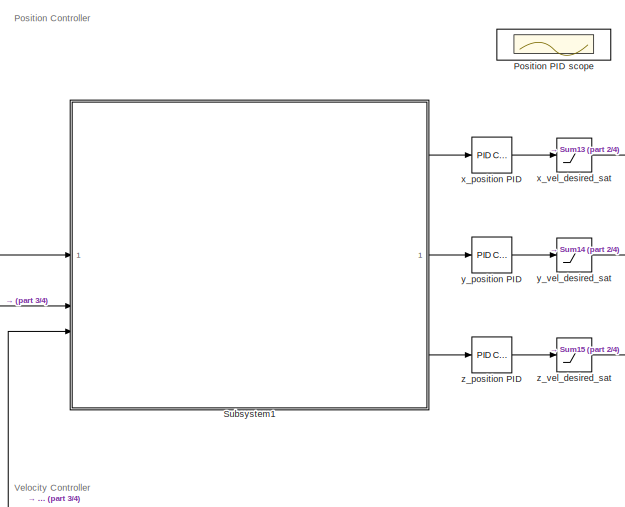
[diagram: root canvas - part 1/4, top center region]
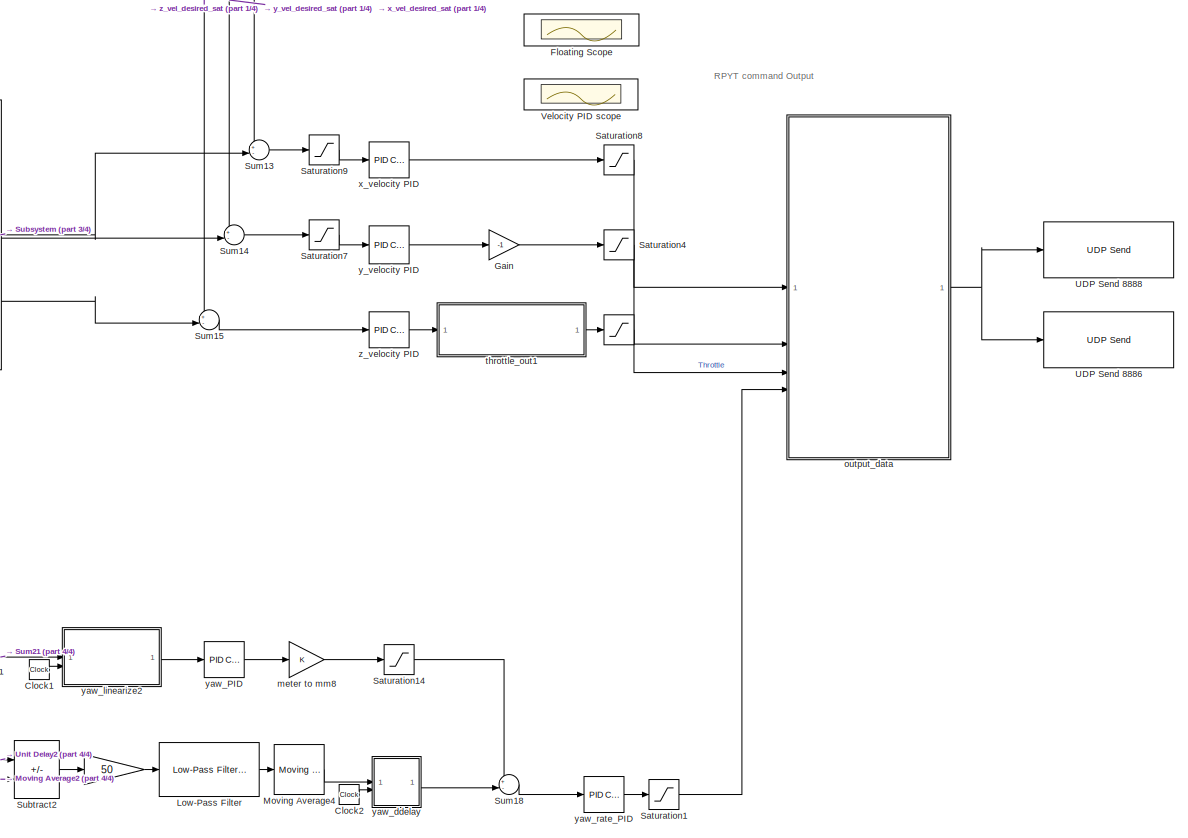
[diagram: root canvas - part 2/4, middle right region]
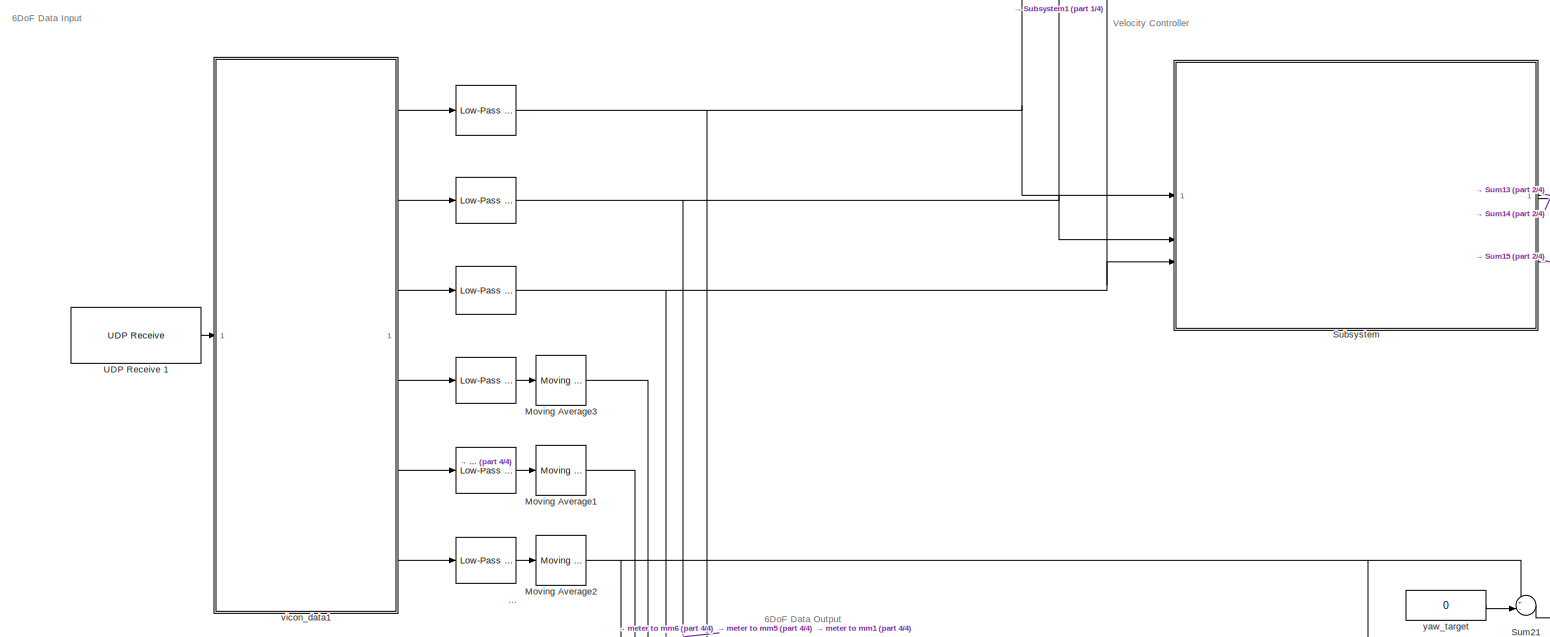
[diagram: root canvas - part 3/4, middle left region]
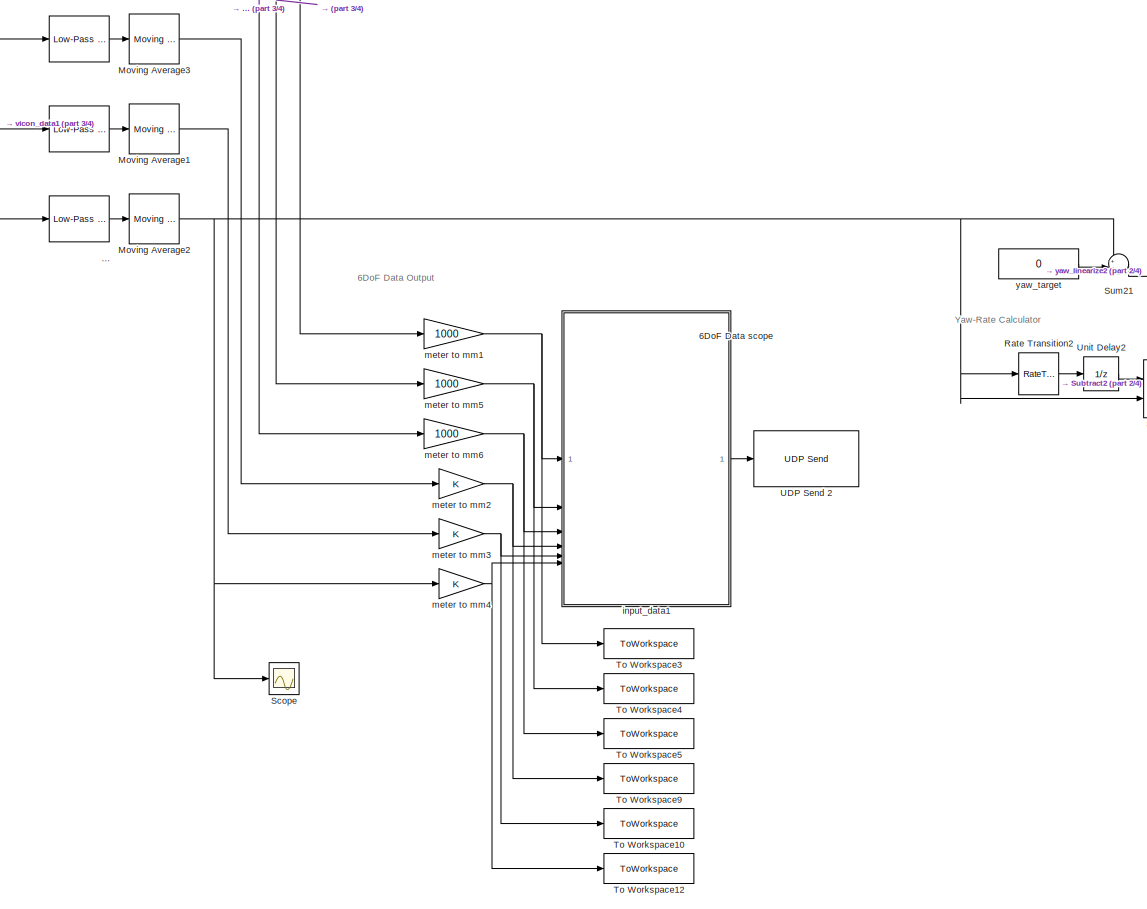
[diagram: root canvas - part 4/4, bottom center region]
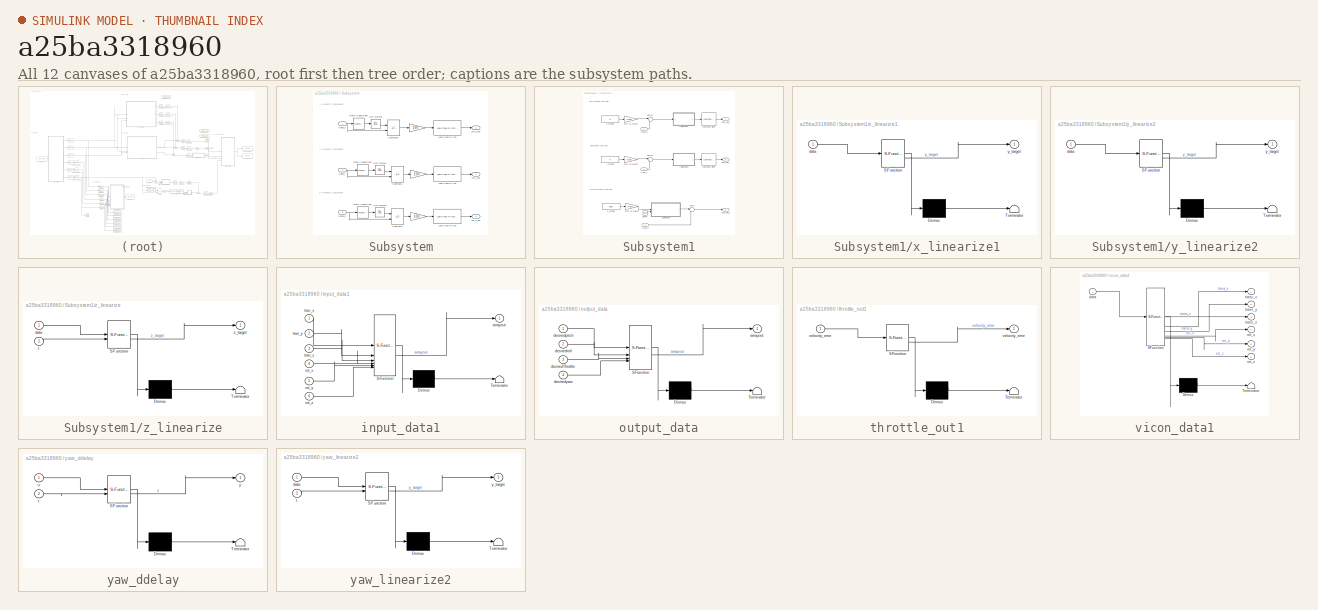
[diagram: thumbnail index - all 12 canvases of the model, root first then tree order]
MODEL slx_a25ba3318960
KIND model
CONFIG AbsTol = auto
CONFIG EnableMultiTasking = off
CONFIG FixedStep = 0.01
CONFIG MaxStep = auto
CONFIG MinStep = auto
CONFIG RelTol = 1e-3
CONFIG SampleTimeConstraint = Unconstrained
CONFIG SolverName = FixedStepDiscrete
CONFIG StartTime = 0.0
CONFIG StopTime = 30
WORKSPACE source: mxarray member
WORKSPACE roll = 1
BLOCK [Saturate]    
  LowerLimit = 0
  UpperLimit = 20000
BLOCK [Reference]       REF=eeGeneralControl/Low-Pass Filter
(Discrete or Continuous)
  LibrarySourceBlock = ee_sl_lib/General Control/Low-Pass Filter\n(Discrete or Continuous)
  SourceBlock = eeGeneralControl/Low-Pass Filter\n(Discrete or Continuous)
  SourceType = Low-Pass Filter (Discrete or Continuous)
BLOCK [Gain]                
  Gain = 50
BLOCK [Reference]                                          REF=eeGeneralControl/Low-Pass Filter
(Discrete or Continuous)
  LibrarySourceBlock = ee_sl_lib/General Control/Low-Pass Filter\n(Discrete or Continuous)
  SourceBlock = eeGeneralControl/Low-Pass Filter\n(Discrete or Continuous)
  SourceType = Low-Pass Filter (Discrete or Continuous)
BLOCK [Reference]                                                       REF=eeGeneralControl/Low-Pass Filter
(Discrete or Continuous)
  LibrarySourceBlock = ee_sl_lib/General Control/Low-Pass Filter\n(Discrete or Continuous)
  SourceBlock = eeGeneralControl/Low-Pass Filter\n(Discrete or Continuous)
  SourceType = Low-Pass Filter (Discrete or Continuous)
BLOCK [Reference]                                                         REF=eeGeneralControl/Low-Pass Filter
(Discrete or Continuous)
  LibrarySourceBlock = ee_sl_lib/General Control/Low-Pass Filter\n(Discrete or Continuous)
  SourceBlock = eeGeneralControl/Low-Pass Filter\n(Discrete or Continuous)
  SourceType = Low-Pass Filter (Discrete or Continuous)
BLOCK [Reference]                                                              REF=eeGeneralControl/Low-Pass Filter
(Discrete or Continuous)
  LibrarySourceBlock = ee_sl_lib/General Control/Low-Pass Filter\n(Discrete or Continuous)
  SourceBlock = eeGeneralControl/Low-Pass Filter\n(Discrete or Continuous)
  SourceType = Low-Pass Filter (Discrete or Continuous)
BLOCK [Reference]                                                                                              REF=eeGeneralControl/Low-Pass Filter
(Discrete or Continuous)
  LibrarySourceBlock = ee_sl_lib/General Control/Low-Pass Filter\n(Discrete or Continuous)
  SourceBlock = eeGeneralControl/Low-Pass Filter\n(Discrete or Continuous)
  SourceType = Low-Pass Filter (Discrete or Continuous)
BLOCK [Reference]     Low-Pass Filter  REF=eeGeneralControl/Low-Pass Filter
(Discrete or Continuous)
  LibrarySourceBlock = ee_sl_lib/General Control/Low-Pass Filter\n(Discrete or Continuous)
  SourceBlock = eeGeneralControl/Low-Pass Filter\n(Discrete or Continuous)
  SourceType = Low-Pass Filter (Discrete or Continuous)
BLOCK [Scope] 6DoF Data scope
  Floating = on
  NumInputPorts = 1
  ScopeSpecificationString = Simulink.scopes.TimeScopeBlockCfg('CurrentConfiguration', extmgr.ConfigurationSet(extmgr.Configuration('Core','General UI',true,'DisplayFullSourceName',false,'ShowMainToolbar',true),extmgr.Configuration('Sources','WiredSimulink',true,'DataLogging',false,'DataLoggingVariableName','ScopeData3','DataLoggingLimitDataPoints',false,'DataLoggingMaxPoints','5000','DataLoggingDecimateData',false,'DataLoggi...<+5822ch>
BLOCK [Clock] Clock1
BLOCK [Clock] Clock2
BLOCK [Scope] Floating Scope
  Floating = on
  NumInputPorts = 1
  ScopeSpecificationString = Simulink.scopes.TimeScopeBlockCfg('CurrentConfiguration', extmgr.ConfigurationSet(extmgr.Configuration('Core','General UI',true),extmgr.Configuration('Core','Source UI',true),extmgr.Configuration('Sources','WiredSimulink',true,'DataLoggingVariableName','ScopeData1'),extmgr.Configuration('Visuals','Time Domain',true,'SerializedDisplays',{struct('MinYLimReal','-1.94103','MaxYLimReal','3.35429','YLab...<+3078ch>
BLOCK [Gain] Gain
  Gain = -1
BLOCK [Reference] Moving Average1  REF=dspstat3/Moving
Average
  SourceBlock = dspstat3/Moving\nAverage
  SourceType = dsp.simulink.MovingAverage
BLOCK [Reference] Moving Average2  REF=dspstat3/Moving
Average
  SourceBlock = dspstat3/Moving\nAverage
  SourceType = dsp.simulink.MovingAverage
BLOCK [Reference] Moving Average3  REF=dspstat3/Moving
Average
  SourceBlock = dspstat3/Moving\nAverage
  SourceType = dsp.simulink.MovingAverage
BLOCK [Reference] Moving Average4  REF=dspstat3/Moving
Average
  SourceBlock = dspstat3/Moving\nAverage
  SourceType = dsp.simulink.MovingAverage
BLOCK [Scope] Position PID scope
  Floating = on
  NumInputPorts = 1
  ScopeSpecificationString = Simulink.scopes.TimeScopeBlockCfg('CurrentConfiguration', extmgr.ConfigurationSet(extmgr.Configuration('Core','General UI',true,'DisplayFullSourceName',false,'ShowMainToolbar',true,'FigureColor',[0.129411764705882 0.129411764705882 0.129411764705882]),extmgr.Configuration('Sources','WiredSimulink',true,'DataLogging',false,'DataLoggingVariableName','ScopeData6','DataLoggingLimitDataPoints',false,'D...<+6168ch>
BLOCK [RateTransition] Rate Transition2
  OutPortSampleTime = 0.02
BLOCK [Saturate] Saturation1
  LowerLimit = -10
  UpperLimit = 10
BLOCK [Saturate] Saturation14
  LowerLimit = -25
  UpperLimit = 25
BLOCK [Saturate] Saturation4
  LowerLimit = -5
  UpperLimit = 5
BLOCK [Saturate] Saturation7
  LowerLimit = -0.8
  UpperLimit = 0.8
BLOCK [Saturate] Saturation8
  LowerLimit = -5
  UpperLimit = 5
BLOCK [Saturate] Saturation9
  LowerLimit = -0.8
  UpperLimit = 0.8
BLOCK [Scope] Scope
  Floating = off
  NumInputPorts = 1
  ScopeSpecificationString = Simulink.scopes.TimeScopeBlockCfg('CurrentConfiguration', extmgr.ConfigurationSet(extmgr.Configuration('Core','General UI',true),extmgr.Configuration('Core','Source UI',true),extmgr.Configuration('Sources','WiredSimulink',true,'DataLoggingVariableName','ScopeData1'),extmgr.Configuration('Visuals','Time Domain',true,'SerializedDisplays',{struct('MinYLimReal','-96.16384','MaxYLimReal','23.34142','YL...<+1496ch>
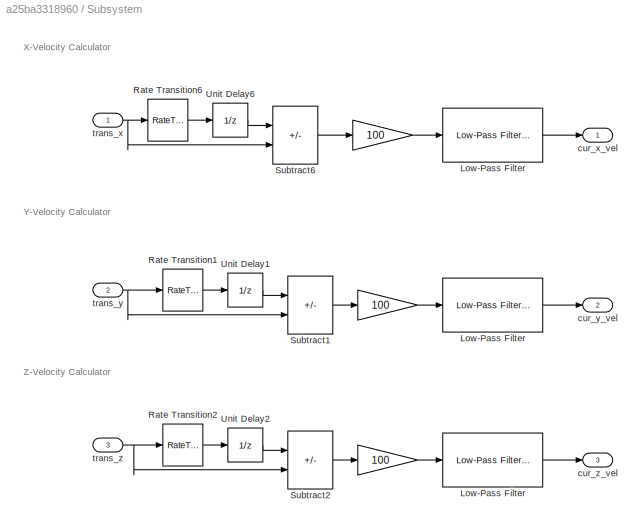
BLOCK [SubSystem] Subsystem
BLOCK [Gain] Subsystem/  
  Gain = 100
BLOCK [Gain] Subsystem/   
  Gain = 100
BLOCK [Gain] Subsystem/     
  Gain = 100
BLOCK [Reference] Subsystem/   Low-Pass Filter  REF=eeGeneralControl/Low-Pass Filter
(Discrete or Continuous)
  LibrarySourceBlock = ee_sl_lib/General Control/Low-Pass Filter\n(Discrete or Continuous)
  SourceBlock = eeGeneralControl/Low-Pass Filter\n(Discrete or Continuous)
  SourceType = Low-Pass Filter (Discrete or Continuous)
BLOCK [Reference] Subsystem/  Low-Pass Filter  REF=eeGeneralControl/Low-Pass Filter
(Discrete or Continuous)
  LibrarySourceBlock = ee_sl_lib/General Control/Low-Pass Filter\n(Discrete or Continuous)
  SourceBlock = eeGeneralControl/Low-Pass Filter\n(Discrete or Continuous)
  SourceType = Low-Pass Filter (Discrete or Continuous)
BLOCK [Reference] Subsystem/  Low-Pass Filter    REF=eeGeneralControl/Low-Pass Filter
(Discrete or Continuous)
  LibrarySourceBlock = ee_sl_lib/General Control/Low-Pass Filter\n(Discrete or Continuous)
  SourceBlock = eeGeneralControl/Low-Pass Filter\n(Discrete or Continuous)
  SourceType = Low-Pass Filter (Discrete or Continuous)
BLOCK [RateTransition] Subsystem/Rate Transition1
  OutPortSampleTime = 0.01
BLOCK [RateTransition] Subsystem/Rate Transition2
  OutPortSampleTime = 0.01
BLOCK [RateTransition] Subsystem/Rate Transition6
  OutPortSampleTime = 0.01
BLOCK [Sum] Subsystem/Subtract1
  IconShape = rectangular
  Inputs = -+
BLOCK [Sum] Subsystem/Subtract2
  IconShape = rectangular
  Inputs = -+
BLOCK [Sum] Subsystem/Subtract6
  IconShape = rectangular
  Inputs = -+
BLOCK [UnitDelay] Subsystem/Unit Delay1
  HasFrameUpgradeWarning = on
  SampleTime = 0.01
BLOCK [UnitDelay] Subsystem/Unit Delay2
  HasFrameUpgradeWarning = on
  SampleTime = 0.01
BLOCK [UnitDelay] Subsystem/Unit Delay6
  HasFrameUpgradeWarning = on
  SampleTime = 0.01
BLOCK [Outport] Subsystem/cur_x_vel
BLOCK [Outport] Subsystem/cur_y_vel
  Port = 2
BLOCK [Outport] Subsystem/cur_z_vel
  Port = 3
BLOCK [Inport] Subsystem/trans_x
BLOCK [Inport] Subsystem/trans_y
  Port = 2
BLOCK [Inport] Subsystem/trans_z
  Port = 3
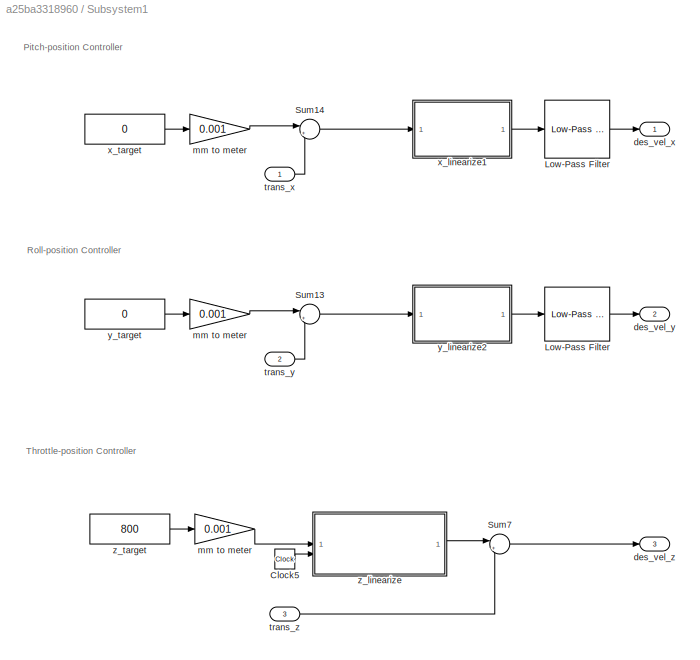
BLOCK [SubSystem] Subsystem1
BLOCK [Gain] Subsystem1/ mm to meter
  Gain = 0.001
BLOCK [Gain] Subsystem1/ mm to meter 
  Gain = 0.001
BLOCK [Clock] Subsystem1/Clock5
BLOCK [Reference] Subsystem1/Low-Pass Filter  REF=eeGeneralControl/Low-Pass Filter
(Discrete or Continuous)
  LibrarySourceBlock = ee_sl_lib/General Control/Low-Pass Filter\n(Discrete or Continuous)
  SourceBlock = eeGeneralControl/Low-Pass Filter\n(Discrete or Continuous)
  SourceType = Low-Pass Filter (Discrete or Continuous)
BLOCK [Reference] Subsystem1/Low-Pass Filter   REF=eeGeneralControl/Low-Pass Filter
(Discrete or Continuous)
  LibrarySourceBlock = ee_sl_lib/General Control/Low-Pass Filter\n(Discrete or Continuous)
  SourceBlock = eeGeneralControl/Low-Pass Filter\n(Discrete or Continuous)
  SourceType = Low-Pass Filter (Discrete or Continuous)
BLOCK [Sum] Subsystem1/Sum13
  Inputs = |+-
BLOCK [Sum] Subsystem1/Sum14
  Inputs = |+-
BLOCK [Sum] Subsystem1/Sum7
  Inputs = |+-
BLOCK [Outport] Subsystem1/des_vel_x
BLOCK [Outport] Subsystem1/des_vel_y
  Port = 2
BLOCK [Outport] Subsystem1/des_vel_z
  Port = 3
BLOCK [Gain] Subsystem1/mm to meter
  Gain = 0.001
BLOCK [Inport] Subsystem1/trans_x
BLOCK [Inport] Subsystem1/trans_y
  Port = 2
BLOCK [Inport] Subsystem1/trans_z
  Port = 3
BLOCK [SubSystem] Subsystem1/x_linearize1
  ErrorFcn = Stateflow.Translate.translate
  PermitHierarchicalResolution = ExplicitOnly
  SFBlockType = MATLAB Function
  TreatAsAtomicUnit = on
BLOCK [Demux] Subsystem1/x_linearize1/ Demux 
  Outputs = 1
BLOCK [S-Function] Subsystem1/x_linearize1/ SFunction 
  EnableBusSupport = on
  FunctionName = sf_sfun
  PortCounts = [1 2]
  SFcnIsStateOwnerBlock = off
  SFunctionDeploymentMode = off
  Tag = Stateflow S-Function 7
BLOCK [Terminator] Subsystem1/x_linearize1/ Terminator 
BLOCK [Inport] Subsystem1/x_linearize1/data
BLOCK [Outport] Subsystem1/x_linearize1/y_target
BLOCK [Constant] Subsystem1/x_target
  Value = 0
BLOCK [SubSystem] Subsystem1/y_linearize2
  ErrorFcn = Stateflow.Translate.translate
  PermitHierarchicalResolution = ExplicitOnly
  SFBlockType = MATLAB Function
  TreatAsAtomicUnit = on
BLOCK [Demux] Subsystem1/y_linearize2/ Demux 
  Outputs = 1
BLOCK [S-Function] Subsystem1/y_linearize2/ SFunction 
  EnableBusSupport = on
  FunctionName = sf_sfun
  PortCounts = [1 2]
  SFcnIsStateOwnerBlock = off
  SFunctionDeploymentMode = off
  Tag = Stateflow S-Function 4
BLOCK [Terminator] Subsystem1/y_linearize2/ Terminator 
BLOCK [Inport] Subsystem1/y_linearize2/data
BLOCK [Outport] Subsystem1/y_linearize2/y_target
BLOCK [Constant] Subsystem1/y_target
  Value = 0
BLOCK [SubSystem] Subsystem1/z_linearize
  ErrorFcn = Stateflow.Translate.translate
  PermitHierarchicalResolution = ExplicitOnly
  SFBlockType = MATLAB Function
  TreatAsAtomicUnit = on
BLOCK [Demux] Subsystem1/z_linearize/ Demux 
  Outputs = 1
BLOCK [S-Function] Subsystem1/z_linearize/ SFunction 
  EnableBusSupport = on
  FunctionName = sf_sfun
  PortCounts = [2 2]
  SFcnIsStateOwnerBlock = off
  SFunctionDeploymentMode = off
  Tag = Stateflow S-Function 8
BLOCK [Terminator] Subsystem1/z_linearize/ Terminator 
BLOCK [Inport] Subsystem1/z_linearize/data
BLOCK [Inport] Subsystem1/z_linearize/t
  Port = 2
BLOCK [Outport] Subsystem1/z_linearize/z_target
BLOCK [Constant] Subsystem1/z_target
  Value = 800
BLOCK [Sum] Subtract2
  IconShape = rectangular
  Inputs = -+
BLOCK [Sum] Sum13
  Inputs = +-|
BLOCK [Sum] Sum14
  Inputs = +-|
BLOCK [Sum] Sum15
  Inputs = +-|
BLOCK [Sum] Sum18
  Inputs = +-|
BLOCK [Sum] Sum21
  Inputs = +-|
BLOCK [ToWorkspace] To Workspace10
  MaxDataPoints = inf
  SampleTime = -1
  SaveFormat = Timeseries
  VariableName = rot_y
BLOCK [ToWorkspace] To Workspace12
  MaxDataPoints = inf
  SampleTime = -1
  SaveFormat = Timeseries
  VariableName = rot_z
BLOCK [ToWorkspace] To Workspace3
  MaxDataPoints = inf
  SampleTime = -1
  SaveFormat = Timeseries
  VariableName = trans_x
BLOCK [ToWorkspace] To Workspace4
  MaxDataPoints = inf
  SampleTime = -1
  SaveFormat = Timeseries
  VariableName = trans_y
BLOCK [ToWorkspace] To Workspace5
  MaxDataPoints = inf
  SampleTime = -1
  SaveFormat = Timeseries
  VariableName = trans_z
BLOCK [ToWorkspace] To Workspace9
  MaxDataPoints = inf
  SampleTime = -1
  SaveFormat = Timeseries
  VariableName = rot_x
BLOCK [Reference] UDP  Send 2  REF=instrumentlib/UDP Send
  SourceBlock = instrumentlib/UDP Send
  SourceType = instrument.system.UDPSend
BLOCK [Reference] UDP  Send 8886  REF=instrumentlib/UDP Send
  SourceBlock = instrumentlib/UDP Send
  SourceType = instrument.system.UDPSend
BLOCK [Reference] UDP  Send 8888  REF=instrumentlib/UDP Send
  SourceBlock = instrumentlib/UDP Send
  SourceType = instrument.system.UDPSend
BLOCK [Reference] UDP Receive 1  REF=instrumentlib/UDP Receive
  SourceBlock = instrumentlib/UDP Receive
  SourceType = instrument.system.UDPReceive
BLOCK [UnitDelay] Unit Delay2
  HasFrameUpgradeWarning = on
  SampleTime = 0.01
BLOCK [Scope] Velocity PID scope
  Floating = on
  NumInputPorts = 1
  ScopeSpecificationString = Simulink.scopes.TimeScopeBlockCfg('CurrentConfiguration', extmgr.ConfigurationSet(extmgr.Configuration('Core','General UI',true,'FigureColor',[0.129411764705882 0.129411764705882 0.129411764705882]),extmgr.Configuration('Core','Source UI',true),extmgr.Configuration('Sources','WiredSimulink',true,'DataLoggingVariableName','ScopeData5'),extmgr.Configuration('Visuals','Time Domain',true,'SerializedDi...<+3335ch>
BLOCK [SubSystem] input_data1
  ErrorFcn = Stateflow.Translate.translate
  PermitHierarchicalResolution = ExplicitOnly
  SFBlockType = MATLAB Function
  TreatAsAtomicUnit = on
BLOCK [Demux] input_data1/ Demux 
  Outputs = 1
BLOCK [S-Function] input_data1/ SFunction 
  EnableBusSupport = on
  FunctionName = sf_sfun
  PortCounts = [6 2]
  SFcnIsStateOwnerBlock = off
  SFunctionDeploymentMode = off
  Tag = Stateflow S-Function 19
BLOCK [Terminator] input_data1/ Terminator 
BLOCK [Outport] input_data1/arrayout
BLOCK [Inport] input_data1/rot_x
  Port = 4
BLOCK [Inport] input_data1/rot_y
  Port = 5
BLOCK [Inport] input_data1/rot_z
  Port = 6
BLOCK [Inport] input_data1/tran_x
BLOCK [Inport] input_data1/tran_y
  Port = 2
BLOCK [Inport] input_data1/tran_z
  Port = 3
BLOCK [Gain] meter to mm1
  Gain = 1000
BLOCK [Gain] meter to mm2
BLOCK [Gain] meter to mm3
BLOCK [Gain] meter to mm4
BLOCK [Gain] meter to mm5
  Gain = 1000
BLOCK [Gain] meter to mm6
  Gain = 1000
BLOCK [Gain] meter to mm8
BLOCK [SubSystem] output_data
  ErrorFcn = Stateflow.Translate.translate
  PermitHierarchicalResolution = ExplicitOnly
  SFBlockType = MATLAB Function
  TreatAsAtomicUnit = on
BLOCK [Demux] output_data/ Demux 
  Outputs = 1
BLOCK [S-Function] output_data/ SFunction 
  EnableBusSupport = on
  FunctionName = sf_sfun
  PortCounts = [4 2]
  SFcnIsStateOwnerBlock = off
  SFunctionDeploymentMode = off
  Tag = Stateflow S-Function 5
BLOCK [Terminator] output_data/ Terminator 
BLOCK [Outport] output_data/arrayout
BLOCK [Inport] output_data/desiredThrottle
  Port = 3
BLOCK [Inport] output_data/desiredpitch
BLOCK [Inport] output_data/desiredroll
  Port = 2
BLOCK [Inport] output_data/desiredyaw
  Port = 4
BLOCK [SubSystem] throttle_out1
  ErrorFcn = Stateflow.Translate.translate
  PermitHierarchicalResolution = ExplicitOnly
  SFBlockType = MATLAB Function
  TreatAsAtomicUnit = on
BLOCK [Demux] throttle_out1/ Demux 
  Outputs = 1
BLOCK [S-Function] throttle_out1/ SFunction 
  EnableBusSupport = on
  FunctionName = sf_sfun
  PortCounts = [1 2]
  SFcnIsStateOwnerBlock = off
  SFunctionDeploymentMode = off
  Tag = Stateflow S-Function 9
BLOCK [Terminator] throttle_out1/ Terminator 
BLOCK [Outport] throttle_out1/velocity_error
BLOCK [Inport] throttle_out1/velocity_error 
BLOCK [SubSystem] vicon_data1
  ErrorFcn = Stateflow.Translate.translate
  PermitHierarchicalResolution = ExplicitOnly
  SFBlockType = MATLAB Function
  TreatAsAtomicUnit = on
BLOCK [Demux] vicon_data1/ Demux 
  Outputs = 1
BLOCK [S-Function] vicon_data1/ SFunction 
  EnableBusSupport = on
  FunctionName = sf_sfun
  PortCounts = [1 7]
  SFcnIsStateOwnerBlock = off
  SFunctionDeploymentMode = off
  Tag = Stateflow S-Function 3
BLOCK [Terminator] vicon_data1/ Terminator 
BLOCK [Inport] vicon_data1/data
BLOCK [Outport] vicon_data1/rot_x
  Port = 4
BLOCK [Outport] vicon_data1/rot_y
  Port = 5
BLOCK [Outport] vicon_data1/rot_z
  Port = 6
BLOCK [Outport] vicon_data1/trans_x
BLOCK [Outport] vicon_data1/trans_y
  Port = 2
BLOCK [Outport] vicon_data1/trans_z
  Port = 3
BLOCK [Reference] x_position PID  REF=slpidlib/PID Controller
  LibrarySourceBlock = simulink/Continuous/PID Controller
  SourceBlock = slpidlib/PID Controller
  SourceType = PID 1dof
BLOCK [Saturate] x_vel_desired_sat
  LowerLimit = -1.2
  UpperLimit = 1.2
BLOCK [Reference] x_velocity PID  REF=slpidlib/PID Controller
  LibrarySourceBlock = simulink/Continuous/PID Controller
  SourceBlock = slpidlib/PID Controller
  SourceType = PID 1dof
BLOCK [Reference] y_position PID  REF=slpidlib/PID Controller
  LibrarySourceBlock = simulink/Continuous/PID Controller
  SourceBlock = slpidlib/PID Controller
  SourceType = PID 1dof
BLOCK [Saturate] y_vel_desired_sat
  LowerLimit = -1.2
  UpperLimit = 1.2
BLOCK [Reference] y_velocity PID  REF=slpidlib/PID Controller
  LibrarySourceBlock = simulink/Continuous/PID Controller
  SourceBlock = slpidlib/PID Controller
  SourceType = PID 1dof
BLOCK [Reference] yaw_PID  REF=slpidlib/PID Controller
  LibrarySourceBlock = simulink/Continuous/PID Controller
  SourceBlock = slpidlib/PID Controller
  SourceType = PID 1dof
BLOCK [SubSystem] yaw_ddelay
  ErrorFcn = Stateflow.Translate.translate
  PermitHierarchicalResolution = ExplicitOnly
  SFBlockType = MATLAB Function
  TreatAsAtomicUnit = on
BLOCK [Demux] yaw_ddelay/ Demux 
  Outputs = 1
BLOCK [S-Function] yaw_ddelay/ SFunction 
  EnableBusSupport = on
  FunctionName = sf_sfun
  PortCounts = [2 2]
  SFcnIsStateOwnerBlock = off
  SFunctionDeploymentMode = off
  Tag = Stateflow S-Function 2
BLOCK [Terminator] yaw_ddelay/ Terminator 
BLOCK [Inport] yaw_ddelay/t
  Port = 2
BLOCK [Inport] yaw_ddelay/u
BLOCK [Outport] yaw_ddelay/y
BLOCK [SubSystem] yaw_linearize2
  ErrorFcn = Stateflow.Translate.translate
  PermitHierarchicalResolution = ExplicitOnly
  SFBlockType = MATLAB Function
  TreatAsAtomicUnit = on
BLOCK [Demux] yaw_linearize2/ Demux 
  Outputs = 1
BLOCK [S-Function] yaw_linearize2/ SFunction 
  EnableBusSupport = on
  FunctionName = sf_sfun
  PortCounts = [2 2]
  SFcnIsStateOwnerBlock = off
  SFunctionDeploymentMode = off
  Tag = Stateflow S-Function 17
BLOCK [Terminator] yaw_linearize2/ Terminator 
BLOCK [Inport] yaw_linearize2/data
BLOCK [Inport] yaw_linearize2/t
  Port = 2
BLOCK [Outport] yaw_linearize2/y_target
BLOCK [Reference] yaw_rate_PID  REF=slpidlib/PID Controller
  LibrarySourceBlock = simulink/Continuous/PID Controller
  SourceBlock = slpidlib/PID Controller
  SourceType = PID 1dof
BLOCK [Constant] yaw_target
  Value = 0
BLOCK [Reference] z_position PID  REF=slpidlib/PID Controller
  LibrarySourceBlock = simulink/Continuous/PID Controller
  SourceBlock = slpidlib/PID Controller
  SourceType = PID 1dof
BLOCK [Saturate] z_vel_desired_sat
  LowerLimit = -2
  UpperLimit = 2
BLOCK [Reference] z_velocity PID  REF=slpidlib/PID Controller
  LibrarySourceBlock = simulink/Continuous/PID Controller
  SourceBlock = slpidlib/PID Controller
  SourceType = PID 1dof
ANNOTATION (root): 6DoF Data Input
ANNOTATION (root): 6DoF Data Output
ANNOTATION (root): Position Controller
ANNOTATION (root): RPYT command Output
ANNOTATION (root): Velocity Controller
ANNOTATION (root): Yaw-Rate Calculator
ANNOTATION Subsystem: X-Velocity Calculator
ANNOTATION Subsystem: Y-Velocity Calculator
ANNOTATION Subsystem: Z-Velocity Calculator
ANNOTATION Subsystem1: Pitch-position Controller
ANNOTATION Subsystem1: Roll-position Controller
ANNOTATION Subsystem1: Throttle-position Controller
LINE                                                                                            :1 -> Moving Average2:1
NET                                                            :1 -> Subsystem1:3, Subsystem:3, meter to mm6:1
LINE                                                       :1 -> Moving Average1:1
LINE                                                     :1 -> Moving Average3:1
NET                                        :1 -> Subsystem1:1, Subsystem:1, meter to mm1:1
LINE                :1 ->     Low-Pass Filter:1
NET     :1 -> Subsystem1:2, Subsystem:2, meter to mm5:1
LINE     Low-Pass Filter:1 -> Moving Average4:1
LINE    :1 -> output_data:3
LINE Clock1:1 -> yaw_linearize2:2
LINE Clock2:1 -> yaw_ddelay:2
LINE Gain:1 -> Saturation4:1
LINE Moving Average1:1 -> meter to mm3:1
NET Moving Average2:1 -> Rate Transition2:1, Scope:1, Subtract2:2, Sum21:1, meter to mm4:1
LINE Moving Average3:1 -> meter to mm2:1
LINE Moving Average4:1 -> yaw_ddelay:1
LINE Rate Transition2:1 -> Unit Delay2:1
LINE Saturation14:1 -> Sum18:1
LINE Saturation1:1 -> output_data:4
LINE Saturation4:1 -> output_data:2
LINE Saturation7:1 -> y_velocity PID:1
LINE Saturation8:1 -> output_data:1
LINE Saturation9:1 -> x_velocity PID:1
LINE Subsystem/     :1 -> Subsystem/   Low-Pass Filter:1
LINE Subsystem/   :1 -> Subsystem/  Low-Pass Filter  :1
LINE Subsystem/   Low-Pass Filter:1 -> Subsystem/cur_z_vel:1
LINE Subsystem/  :1 -> Subsystem/  Low-Pass Filter:1
LINE Subsystem/  Low-Pass Filter  :1 -> Subsystem/cur_y_vel:1
LINE Subsystem/  Low-Pass Filter:1 -> Subsystem/cur_x_vel:1
LINE Subsystem/Rate Transition1:1 -> Subsystem/Unit Delay1:1
LINE Subsystem/Rate Transition2:1 -> Subsystem/Unit Delay2:1
LINE Subsystem/Rate Transition6:1 -> Subsystem/Unit Delay6:1
LINE Subsystem/Subtract1:1 -> Subsystem/   :1
LINE Subsystem/Subtract2:1 -> Subsystem/     :1
LINE Subsystem/Subtract6:1 -> Subsystem/  :1
LINE Subsystem/Unit Delay1:1 -> Subsystem/Subtract1:1
LINE Subsystem/Unit Delay2:1 -> Subsystem/Subtract2:1
LINE Subsystem/Unit Delay6:1 -> Subsystem/Subtract6:1
NET Subsystem/trans_x:1 -> Subsystem/Rate Transition6:1, Subsystem/Subtract6:2
NET Subsystem/trans_y:1 -> Subsystem/Rate Transition1:1, Subsystem/Subtract1:2
NET Subsystem/trans_z:1 -> Subsystem/Rate Transition2:1, Subsystem/Subtract2:2
LINE Subsystem1/ mm to meter :1 -> Subsystem1/Sum14:1
LINE Subsystem1/ mm to meter:1 -> Subsystem1/z_linearize:1
LINE Subsystem1/Clock5:1 -> Subsystem1/z_linearize:2
LINE Subsystem1/Low-Pass Filter :1 -> Subsystem1/des_vel_y:1
LINE Subsystem1/Low-Pass Filter:1 -> Subsystem1/des_vel_x:1
LINE Subsystem1/Sum13:1 -> Subsystem1/y_linearize2:1
LINE Subsystem1/Sum14:1 -> Subsystem1/x_linearize1:1
LINE Subsystem1/Sum7:1 -> Subsystem1/des_vel_z:1
LINE Subsystem1/mm to meter:1 -> Subsystem1/Sum13:1
LINE Subsystem1/trans_x:1 -> Subsystem1/Sum14:2
LINE Subsystem1/trans_y:1 -> Subsystem1/Sum13:2
LINE Subsystem1/trans_z:1 -> Subsystem1/Sum7:2
LINE Subsystem1/x_linearize1:1 -> Subsystem1/Low-Pass Filter:1
LINE Subsystem1/x_target:1 -> Subsystem1/ mm to meter :1
LINE Subsystem1/y_linearize2:1 -> Subsystem1/Low-Pass Filter :1
LINE Subsystem1/y_target:1 -> Subsystem1/mm to meter:1
LINE Subsystem1/z_linearize:1 -> Subsystem1/Sum7:1
LINE Subsystem1/z_target:1 -> Subsystem1/ mm to meter:1
LINE Subsystem1:1 -> x_position PID:1
LINE Subsystem1:2 -> y_position PID:1
LINE Subsystem1:3 -> z_position PID:1
LINE Subsystem:1 -> Sum13:2
LINE Subsystem:2 -> Sum14:2
LINE Subsystem:3 -> Sum15:2
LINE Subtract2:1 ->                :1
LINE Sum13:1 -> Saturation9:1
LINE Sum14:1 -> Saturation7:1
LINE Sum15:1 -> z_velocity PID:1
LINE Sum18:1 -> yaw_rate_PID:1
LINE Sum21:1 -> yaw_linearize2:1
LINE UDP Receive 1:1 -> vicon_data1:1
LINE Unit Delay2:1 -> Subtract2:1
LINE input_data1:1 -> UDP  Send 2:1
NET meter to mm1:1 -> To Workspace3:1, input_data1:1
NET meter to mm2:1 -> To Workspace9:1, input_data1:4
NET meter to mm3:1 -> To Workspace10:1, input_data1:5
NET meter to mm4:1 -> To Workspace12:1, input_data1:6
NET meter to mm5:1 -> To Workspace4:1, input_data1:2
NET meter to mm6:1 -> To Workspace5:1, input_data1:3
LINE meter to mm8:1 -> Saturation14:1
NET output_data:1 -> UDP  Send 8886:1, UDP  Send 8888:1
LINE throttle_out1:1 ->    :1
LINE vicon_data1:1 ->                                        :1
LINE vicon_data1:2 ->     :1
LINE vicon_data1:3 ->                                                            :1
LINE vicon_data1:4 ->                                                     :1
LINE vicon_data1:5 ->                                                       :1
LINE vicon_data1:6 ->                                                                                            :1
LINE x_position PID:1 -> x_vel_desired_sat:1
LINE x_vel_desired_sat:1 -> Sum13:1
LINE x_velocity PID:1 -> Saturation8:1
LINE y_position PID:1 -> y_vel_desired_sat:1
LINE y_vel_desired_sat:1 -> Sum14:1
LINE y_velocity PID:1 -> Gain:1
LINE yaw_PID:1 -> meter to mm8:1
LINE yaw_ddelay:1 -> Sum18:2
LINE yaw_linearize2:1 -> yaw_PID:1
LINE yaw_rate_PID:1 -> Saturation1:1
LINE yaw_target:1 -> Sum21:2
LINE z_position PID:1 -> z_vel_desired_sat:1
LINE z_vel_desired_sat:1 -> Sum15:1
LINE z_velocity PID:1 -> throttle_out1:1
note: NET lines group one-source signal fan-out (src -> all destinations, sorted); 1:1 wires keep LINE
CHART yaw_ddelay states=1 transitions=1
  STATE_LABEL 'eML_blk_kernel()'
  STATE_LABEL 'SCRIPT:\nfunction y = hold(u, t)\n% u: 原始輸入\n% t: 當前模擬時間\n% y: 輸出，若 t < 1 則為 0，否則輸出 u\n\nif t < 2\n    y = 0;\nelse\n    y = u;\nend\n'
CHART vicon_data1 states=1 transitions=1
  STATE_LABEL 'eML_blk_kernel()'
  STATE_LABEL "SCRIPT:\nfunction [ ...\n    trans_x, trans_y, trans_z, rot_x, rot_y, rot_z] = decode_vicon_data(data)\n    % Define expected output sizes explicitly\n    % Set up each output as an array with dimensions (1x1) or (8x1) as needed.\n\n    % Initialize output arrays\n\n    trans_x = zeros(1, 1, 'double');       % Scalar, double\n    trans_y = zeros(1, 1, 'double');       % Scalar, double\n    trans_z = zeros(1...<+637ch>"
CHART Subsystem1/y_linearize2 states=1 transitions=1
  STATE_LABEL 'eML_blk_kernel()'
  STATE_LABEL 'SCRIPT:\nfunction y_target = y_takeoff_smooth(data)\n% 延遲 2 秒後開始輸出平滑 takeoff 曲線\n\n    persistent t\n    if isempty(t)\n        t = 0;\n    end\n\n    dt = 0.01;            % 每次呼叫的時間間隔（秒）\n    T_delay = 4 ;         % 延遲開始時間（秒）\n    T_smooth = 6;        % 平滑上升總時間（秒）\n    y_max = data;         % 目標最大高度或位置\n\n    t = t + dt;\n\n    if t < T_delay\n        y_target = 0;\n    elseif t >= (T_delay + T_smooth)\n        y_t...<+178ch>'
CHART output_data states=1 transitions=1
  STATE_LABEL 'eML_blk_kernel()'
  STATE_LABEL 'SCRIPT:\n% MATLAB Function code\nfunction arrayout  = toarray( desiredpitch,desiredroll,desiredThrottle, desiredyaw )\n    % Cast each input value to int32\n    desiredroll = single(desiredroll);  \n    desiredpitch = single(desiredpitch);  \n    desiredyaw = single(desiredyaw);\n    desiredThrottle = single(desiredThrottle); \n    \n    % Store the values in an array\n    arrayout = [desiredroll, desiredpi...<+190ch>'
CHART Subsystem1/x_linearize1 states=1 transitions=1
  STATE_LABEL 'eML_blk_kernel()'
  STATE_LABEL 'SCRIPT:\nfunction y_target = y_takeoff_smooth(data)\n% 延遲 2 秒後開始輸出平滑 takeoff 曲線\n\n    persistent t\n    if isempty(t)\n        t = 0;\n    end\n\n    dt = 0.01;            % 每次呼叫的時間間隔（秒）\n    T_delay = 4 ;         % 延遲開始時間（秒）\n    T_smooth = 6;        % 平滑上升總時間（秒）\n    y_max = data;         % 目標最大高度或位置\n\n    t = t + dt;\n\n    if t < T_delay\n        y_target = 0;\n    elseif t >= (T_delay + T_smooth)\n        y_t...<+178ch>'
CHART Subsystem1/z_linearize states=1 transitions=1
  STATE_LABEL 'eML_blk_kernel()'
  STATE_LABEL 'SCRIPT:\n    function z_target = z_takeoff_smooth(data,t)\n    % 平滑 takeoff z_target 輸出：cosine-based interpolation\n    \n        T = 3;              % 起飛總時間（秒）\n        z_max = data;        % 最大高度（公尺）\n    \n    \n        if t >= T\n            z_target = z_max;\n        else\n            % S-curve interpolation：平滑上升\n            z_target = z_max * (1 - cos(pi * t / T)) / 2;\n        end\n    end\n'
CHART throttle_out1 states=1 transitions=1
  STATE_LABEL 'eML_blk_kernel()'
  STATE_LABEL 'SCRIPT:\nfunction velocity_error = scale_error(velocity_error)\n%  0–20000 range.\n\ng = 9.81;          % Gravitational acceleration (m/s^2)\nm = 0.03;          % Mass of the Crazyflie quadrotor (kg)\nFmax = 1.2;        % Maximum total thrust (N)\n\nK = (m / Fmax) * 20000;   % Scaling factor to map force to the range [0, 20000]\n\n% Convert the velocity error into a scaled thrust command,\n% incorporating gr...<+176ch>'
CHART yaw_linearize2 states=1 transitions=1
  STATE_LABEL 'eML_blk_kernel()'
  STATE_LABEL 'SCRIPT:\nfunction y_target = y_takeoff_smooth(data,t) \n% 延遲 5 秒後平滑起飛，最終輸出最大限制為 10°\n\n\n    T_delay = 3;          % 延遲開始時間（秒）\n    T_smooth = 2;         % 平滑上升總時間（秒）\n    y_max_input = data;   % 使用者輸入目標高度或角度\n    y_max_limit = 5;     % 最大限制角度（度）\n    \n    y_max = min(y_max_input, y_max_limit);  % 限制最大值\n\n\n    if t < T_delay\n        y_target = 0;\n    elseif t >= (T_delay + T_smooth)\n        y_target = y_max...<+165ch>'
CHART input_data1 states=1 transitions=1
  STATE_LABEL 'eML_blk_kernel()'
  STATE_LABEL 'SCRIPT:\n% MATLAB Function code\nfunction arrayout  = toarray(tran_x, tran_y, tran_z, rot_x, rot_y, rot_z)\n    % Cast each input value to int32\n    tran_x = single(tran_x);  \n    tran_y = single(tran_y);  \n    tran_z = single(tran_z);\n    rot_x = single(rot_x); \n    rot_y = single(rot_y);\n    rot_z = single(rot_z);\n    \n    % Store the values in an array\n    arrayout = [tran_x, tran_y, tran_z, rot_x...<+24ch>'
CHART  states=0 transitions=0
CHART  states=0 transitions=0
CHART  states=0 transitions=0
CHART  states=0 transitions=0
CHART  states=0 transitions=0
CHART  states=0 transitions=0
CHART  states=0 transitions=0
CHART  states=0 transitions=0
CHART  states=0 transitions=0
